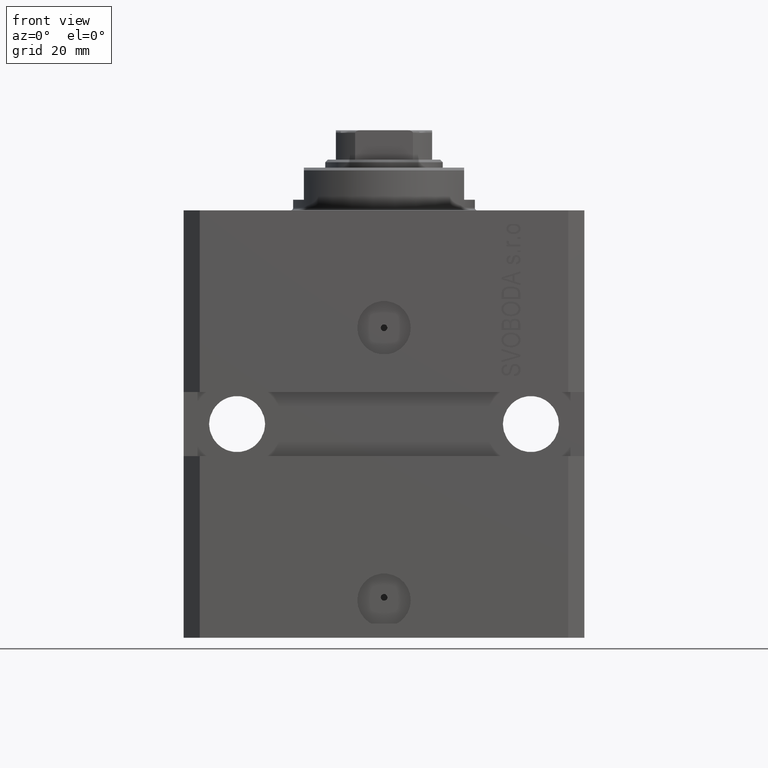
[diagram: clean part render]
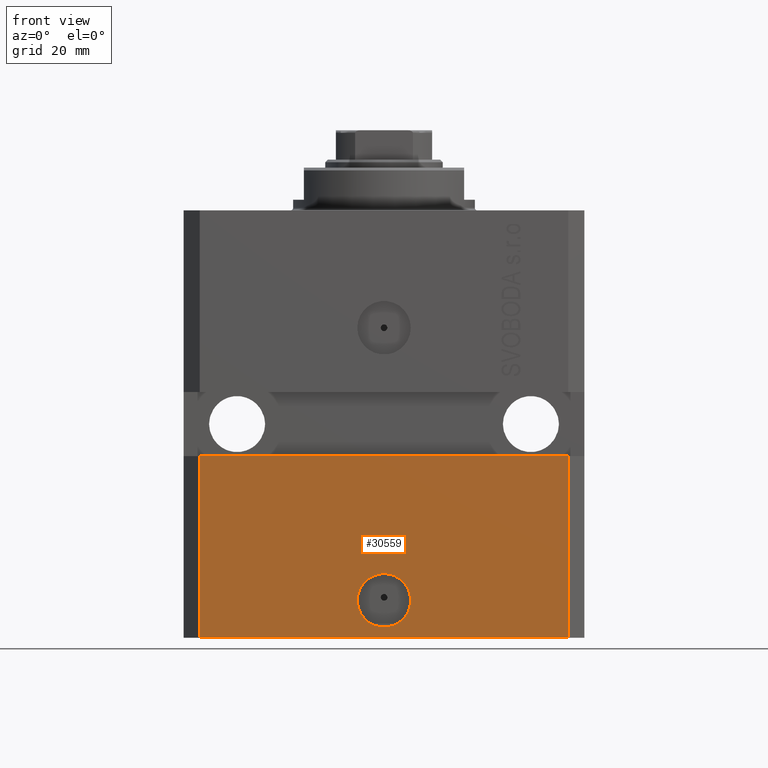
[diagram: same view with one face highlighted and labeled with its STEP entity id]
A machine part, front view. The second image highlights one B-rep face of the part: STEP entity #30559.
In plain terms, the highlighted planar face has unit normal (0, -1, 0).
Its self-contained STEP definition (entity closure, byte-faithful):
#495 = CARTESIAN_POINT ( 'NONE',  ( 34.49999999999999289, -27.49999999999999645, -80.00000000000000000 ) ) ;
#499 = DIRECTION ( 'NONE',  ( 1.176083712526788232E-16, -1.000000000000000000, 0.000000000000000000 ) ) ;
#597 = CARTESIAN_POINT ( 'NONE',  ( -34.49999999999998579, -27.50000000000000000, -46.00000000000000000 ) ) ;
#1321 = VERTEX_POINT ( 'NONE', #495 ) ;
#1400 = ORIENTED_EDGE ( 'NONE', *, *, #43126, .T. ) ;
#2298 = CARTESIAN_POINT ( 'NONE',  ( 0.000000000000000000, -27.49999999999999645, -73.00000000000000000 ) ) ;
#3041 = ORIENTED_EDGE ( 'NONE', *, *, #43446, .F. ) ;
#3567 = ORIENTED_EDGE ( 'NONE', *, *, #44848, .F. ) ;
#3794 = CARTESIAN_POINT ( 'NONE',  ( -37.50000000000000000, -27.50000000000000000, -46.00000000000000000 ) ) ;
#5666 = VERTEX_POINT ( 'NONE', #597 ) ;
#6570 = CARTESIAN_POINT ( 'NONE',  ( -5.000000000000006217, -27.49999999999999645, -73.00000000000000000 ) ) ;
#7297 = EDGE_CURVE ( 'NONE', #1321, #21470, #24102, .T. ) ;
#7532 = AXIS2_PLACEMENT_3D ( 'NONE', #43127, #499, #18022 ) ;
#8797 = LINE ( 'NONE', #41948, #13723 ) ;
#9406 = LINE ( 'NONE', #31402, #45574 ) ;
#9965 = VERTEX_POINT ( 'NONE', #24955 ) ;
#11783 = ORIENTED_EDGE ( 'NONE', *, *, #43865, .F. ) ;
#12009 = DIRECTION ( 'NONE',  ( 0.000000000000000000, -1.000000000000000000, 0.000000000000000000 ) ) ;
#13723 = VECTOR ( 'NONE', #16151, 1000.000000000000000 ) ;
#16151 = DIRECTION ( 'NONE',  ( 1.000000000000000000, 0.000000000000000000, 0.000000000000000000 ) ) ;
#17420 = DIRECTION ( 'NONE',  ( 1.000000000000000000, 0.000000000000000000, 0.000000000000000000 ) ) ;
#18022 = DIRECTION ( 'NONE',  ( 1.000000000000000000, 0.000000000000000000, 0.000000000000000000 ) ) ;
#20258 = EDGE_LOOP ( 'NONE', ( #30981, #11783 ) ) ;
#20571 = CARTESIAN_POINT ( 'NONE',  ( 34.49999999999999289, -27.49999999999999645, -80.00000000000000000 ) ) ;
#21470 = VERTEX_POINT ( 'NONE', #38676 ) ;
#21784 = LINE ( 'NONE', #3794, #25078 ) ;
#22615 = VERTEX_POINT ( 'NONE', #45451 ) ;
#23710 = VECTOR ( 'NONE', #34758, 1000.000000000000000 ) ;
#23844 = DIRECTION ( 'NONE',  ( 0.000000000000000000, 0.000000000000000000, 1.000000000000000000 ) ) ;
#24102 = LINE ( 'NONE', #20571, #23710 ) ;
#24955 = CARTESIAN_POINT ( 'NONE',  ( -34.49999999999998579, -27.49999999999999645, -80.00000000000000000 ) ) ;
#25078 = VECTOR ( 'NONE', #29568, 1000.000000000000000 ) ;
#25645 = EDGE_LOOP ( 'NONE', ( #3041, #3567, #1400, #42597 ) ) ;
#27235 = VERTEX_POINT ( 'NONE', #6570 ) ;
#28858 = CIRCLE ( 'NONE', #40214, 5.000000000000006217 ) ;
#29568 = DIRECTION ( 'NONE',  ( 1.000000000000000000, 9.251858538542972814E-17, 0.000000000000000000 ) ) ;
#29998 = PLANE ( 'NONE',  #44430 ) ;
#30559 = ADVANCED_FACE ( 'NONE', ( #37104, #40902 ), #29998, .T. ) ;
#30981 = ORIENTED_EDGE ( 'NONE', *, *, #38038, .F. ) ;
#31402 = CARTESIAN_POINT ( 'NONE',  ( -34.49999999999998579, -27.49999999999999645, -80.00000000000000000 ) ) ;
#34032 = DIRECTION ( 'NONE',  ( 0.000000000000000000, -0.000000000000000000, -1.000000000000000000 ) ) ;
#34758 = DIRECTION ( 'NONE',  ( 0.000000000000000000, 0.000000000000000000, 1.000000000000000000 ) ) ;
#37104 = FACE_BOUND ( 'NONE', #20258, .T. ) ;
#38038 = EDGE_CURVE ( 'NONE', #22615, #27235, #46851, .T. ) ;
#38676 = CARTESIAN_POINT ( 'NONE',  ( 34.49999999999999289, -27.49999999999999289, -46.00000000000000000 ) ) ;
#38969 = DIRECTION ( 'NONE',  ( 1.176083712526788232E-16, -1.000000000000000000, 0.000000000000000000 ) ) ;
#40214 = AXIS2_PLACEMENT_3D ( 'NONE', #2298, #38969, #17420 ) ;
#40902 = FACE_OUTER_BOUND ( 'NONE', #25645, .T. ) ;
#41948 = CARTESIAN_POINT ( 'NONE',  ( -34.49999999999998579, -27.49999999999999645, -80.00000000000000000 ) ) ;
#42597 = ORIENTED_EDGE ( 'NONE', *, *, #7297, .T. ) ;
#43126 = EDGE_CURVE ( 'NONE', #9965, #1321, #8797, .T. ) ;
#43127 = CARTESIAN_POINT ( 'NONE',  ( 0.000000000000000000, -27.49999999999999645, -73.00000000000000000 ) ) ;
#43446 = EDGE_CURVE ( 'NONE', #5666, #21470, #21784, .T. ) ;
#43865 = EDGE_CURVE ( 'NONE', #27235, #22615, #28858, .T. ) ;
#44430 = AXIS2_PLACEMENT_3D ( 'NONE', #44461, #12009, #34032 ) ;
#44461 = CARTESIAN_POINT ( 'NONE',  ( -34.49999999999998579, -27.49999999999999645, -80.00000000000000000 ) ) ;
#44848 = EDGE_CURVE ( 'NONE', #9965, #5666, #9406, .T. ) ;
#45451 = CARTESIAN_POINT ( 'NONE',  ( 5.000000000000006217, -27.49999999999999645, -73.00000000000000000 ) ) ;
#45574 = VECTOR ( 'NONE', #23844, 1000.000000000000000 ) ;
#46851 = CIRCLE ( 'NONE', #7532, 5.000000000000006217 ) ;